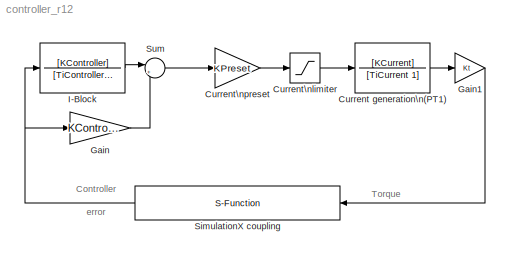
MODEL controller_r12
KIND model
CONFIG AbsTol = auto
CONFIG FixedStep = auto
CONFIG MaxStep = auto
CONFIG MinStep = auto
CONFIG RelTol = 1e-3
CONFIG Solver = ode45
CONFIG SolverMode = Auto
CONFIG StartTime = 0.0
CONFIG StopTime = 1.0
BLOCK [TransferFcn] Current generation\n(PT1)
  AbsoluteTolerance = auto
  Denominator = [TiCurrent 1]
  Numerator = [KCurrent]
  Realization = auto
BLOCK [Saturate] Current\nlimiter
  LinearizeAsGain = on
  LowerLimit = Imin
  UpperLimit = Imax
BLOCK [Gain] Current\npreset
  Gain = KPreset
  Multiplication = Element-wise(K.*u)
  SaturateOnIntegerOverflow = on
BLOCK [Gain] Gain
  Gain = KController
  Multiplication = Element-wise(K.*u)
  SaturateOnIntegerOverflow = on
BLOCK [Gain] Gain1
  Gain = Kt
  Multiplication = Element-wise(K.*u)
  SaturateOnIntegerOverflow = on
BLOCK [TransferFcn] I-Block
  AbsoluteTolerance = auto
  Denominator = [TiController 0]
  Numerator = [KController]
  Realization = auto
BLOCK [S-Function] SimulationX coupling
  FunctionName = ITIFct2
  MaskCallbackString = ||||
  MaskDescription = Coupling Element
  MaskEnableString = on,on,on,on,on
  MaskIconFrame = on
  MaskIconOpaque = on
  MaskIconRotate = none
  MaskIconUnits = autoscale
  MaskPromptString = Address: ip|Port Number: port [-]|Communication Step Size: ts [s]|Input Vector Dimension (to SimulationX): nIn [-]|Output Vector Dimension (from SimulationX): nOut [-]
  MaskStyleString = edit,edit,edit,edit,edit
  MaskTabNameString = ,,,,
  MaskToolTipString = on,on,on,on,on
  MaskTunableValueString = off,off,off,off,off
  MaskValueString = 'localhost'|4097|0.001|1|1
  MaskVarAliasString = ,,,,
  MaskVariables = ip=@1;port=@2;ts=@3;nIn=@4;nOut=@5;
  MaskVisibilityString = on,on,on,on,on
  Parameters = ip, port, ts, nIn, nOut
  PortCounts = []
  Ports = [1, 1]
  SFunctionModules = ''
BLOCK [Sum] Sum
  IconShape = round
  Inputs = |++
  Ports = [2, 1]
  SaturateOnIntegerOverflow = on
LINE Current generation\n(PT1):1 -> Gain1:1
LINE Current\nlimiter:1 -> Current generation\n(PT1):1
LINE Current\npreset:1 -> Current\nlimiter:1
LINE Gain1:1 -> SimulationX coupling:1
LINE Gain:1 -> Sum:2
LINE I-Block:1 -> Sum:1
NET SimulationX coupling:1 -> Gain:1, I-Block:1
LINE Sum:1 -> Current\npreset:1
note: NET lines group one-source signal fan-out (src -> all destinations, sorted); 1:1 wires keep LINE
